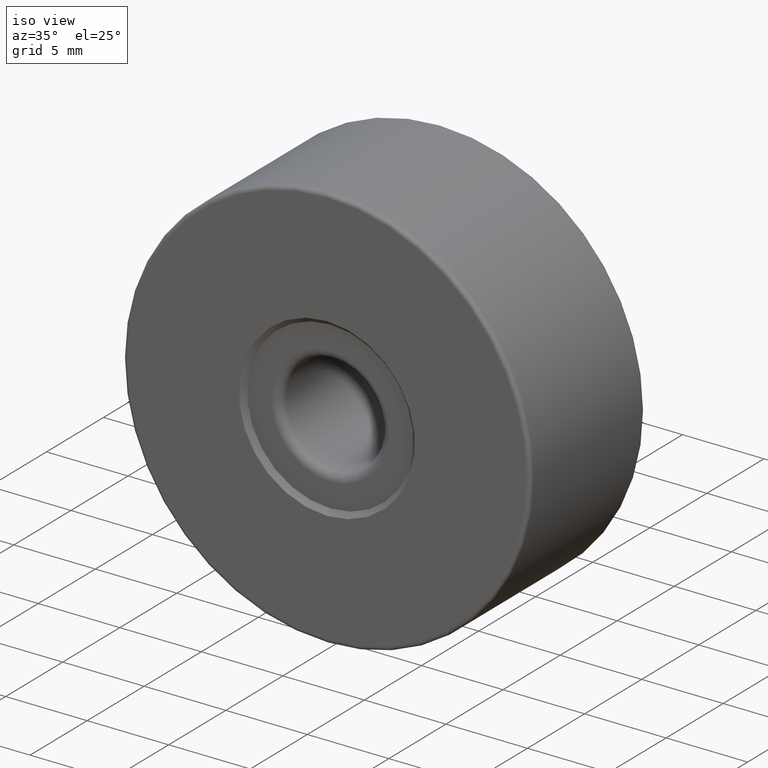
[diagram: clean part render]
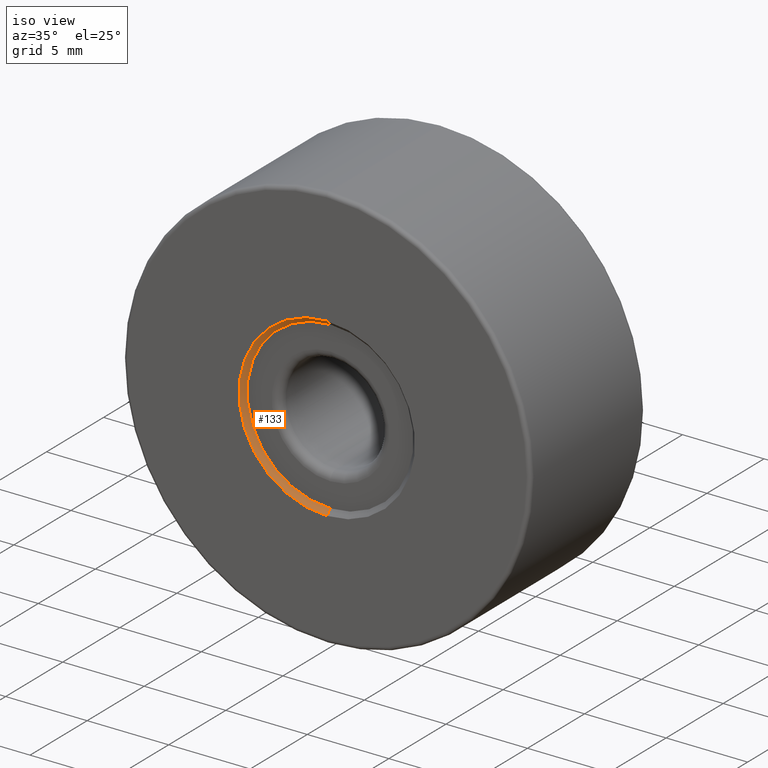
[diagram: same view with one face highlighted and labeled with its STEP entity id]
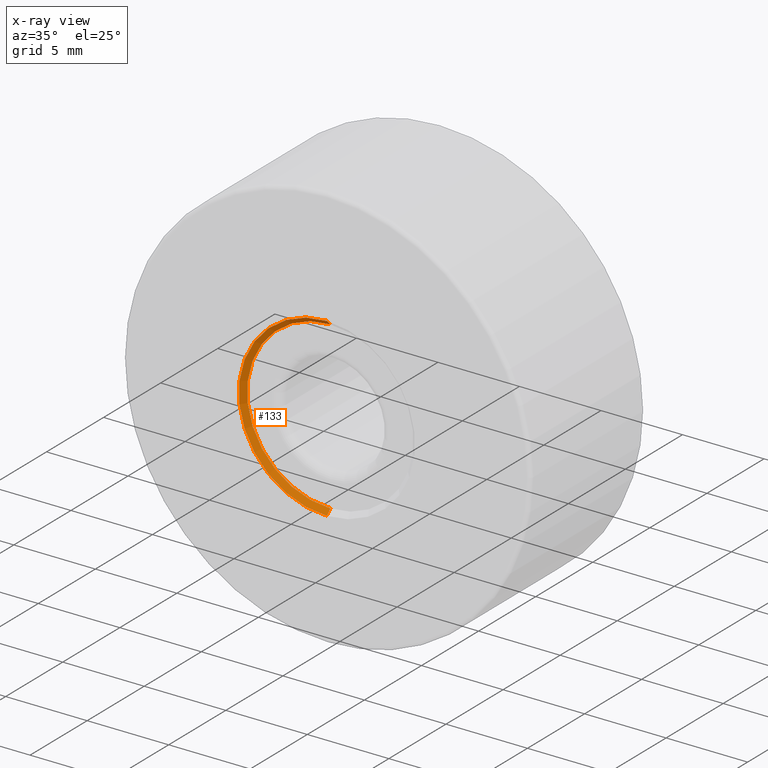
[diagram: x-ray of the same camera — body ghosted, the highlighted face saturated]
A machine part, iso view. The second image highlights one B-rep face of the part: STEP entity #133.
The next image is the same camera in x-ray: the body ghosted, the highlighted face saturated — about 0% of this face is hidden behind the body in this view.
In plain terms, the highlighted conical surface has half-angle 45 deg.
Its self-contained STEP definition (entity closure, byte-faithful):
#14 = AXIS2_PLACEMENT_3D ( 'NONE', #412, #128, #508 ) ;
#27 = EDGE_CURVE ( 'NONE', #131, #246, #195, .T. ) ;
#38 = VERTEX_POINT ( 'NONE', #551 ) ;
#89 = ORIENTED_EDGE ( 'NONE', *, *, #27, .T. ) ;
#128 = DIRECTION ( 'NONE',  ( -0.0000000000000000000, -1.000000000000000000, -0.0000000000000000000 ) ) ;
#131 = VERTEX_POINT ( 'NONE', #253 ) ;
#133 = ADVANCED_FACE ( 'NONE', ( #353 ), #473, .F. ) ;
#162 = DIRECTION ( 'NONE',  ( 0.0000000000000000000, -0.7071067811865505703, -0.7071067811865444641 ) ) ;
#169 = ORIENTED_EDGE ( 'NONE', *, *, #586, .F. ) ;
#191 = DIRECTION ( 'NONE',  ( 8.659560562354895880E-17, -0.7071067811865505703, 0.7071067811865444641 ) ) ;
#195 = CIRCLE ( 'NONE', #310, 5.100000000000000533 ) ;
#198 = CARTESIAN_POINT ( 'NONE',  ( -4.682026255059963837, -6.594975976998274980, 30.40000000000000213 ) ) ;
#199 = CARTESIAN_POINT ( 'NONE',  ( -4.682026255059964726, -6.594975976998274980, 25.00000000000000000 ) ) ;
#246 = VERTEX_POINT ( 'NONE', #255 ) ;
#253 = CARTESIAN_POINT ( 'NONE',  ( -4.682026255059964726, -6.294975976998275158, 19.90000000000000213 ) ) ;
#255 = CARTESIAN_POINT ( 'NONE',  ( -4.682026255059963837, -6.294975976998275158, 30.10000000000000142 ) ) ;
#291 = ORIENTED_EDGE ( 'NONE', *, *, #605, .F. ) ;
#297 = DIRECTION ( 'NONE',  ( 0.0000000000000000000, 0.0000000000000000000, 1.000000000000000000 ) ) ;
#310 = AXIS2_PLACEMENT_3D ( 'NONE', #459, #559, #361 ) ;
#353 = FACE_OUTER_BOUND ( 'NONE', #614, .T. ) ;
#355 = AXIS2_PLACEMENT_3D ( 'NONE', #199, #403, #297 ) ;
#361 = DIRECTION ( 'NONE',  ( 0.0000000000000000000, 0.0000000000000000000, 1.000000000000000000 ) ) ;
#378 = VERTEX_POINT ( 'NONE', #432 ) ;
#389 = VECTOR ( 'NONE', #162, 1000.000000000000114 ) ;
#403 = DIRECTION ( 'NONE',  ( 0.0000000000000000000, 1.000000000000000000, 0.0000000000000000000 ) ) ;
#408 = EDGE_CURVE ( 'NONE', #246, #38, #617, .T. ) ;
#412 = CARTESIAN_POINT ( 'NONE',  ( -4.682026255059964726, -6.594975976998274980, 25.00000000000000000 ) ) ;
#416 = VECTOR ( 'NONE', #191, 1000.000000000000114 ) ;
#432 = CARTESIAN_POINT ( 'NONE',  ( -4.682026255059964726, -6.594975976998274980, 19.59999999999999787 ) ) ;
#450 = CARTESIAN_POINT ( 'NONE',  ( -4.682026255059964726, -6.594975976998274980, 19.59999999999999787 ) ) ;
#459 = CARTESIAN_POINT ( 'NONE',  ( -4.682026255059964726, -6.294975976998275158, 25.00000000000000000 ) ) ;
#473 = CONICAL_SURFACE ( 'NONE', #14, 5.400000000000002132, 0.7853981633974439491 ) ;
#508 = DIRECTION ( 'NONE',  ( 0.0000000000000000000, 0.0000000000000000000, -1.000000000000000000 ) ) ;
#529 = ORIENTED_EDGE ( 'NONE', *, *, #408, .T. ) ;
#551 = CARTESIAN_POINT ( 'NONE',  ( -4.682026255059963837, -6.594975976998274980, 30.40000000000000213 ) ) ;
#559 = DIRECTION ( 'NONE',  ( -0.0000000000000000000, 1.000000000000000000, -0.0000000000000000000 ) ) ;
#566 = CIRCLE ( 'NONE', #355, 5.400000000000002132 ) ;
#577 = LINE ( 'NONE', #450, #389 ) ;
#586 = EDGE_CURVE ( 'NONE', #378, #38, #566, .T. ) ;
#605 = EDGE_CURVE ( 'NONE', #131, #378, #577, .T. ) ;
#614 = EDGE_LOOP ( 'NONE', ( #89, #529, #169, #291 ) ) ;
#617 = LINE ( 'NONE', #198, #416 ) ;